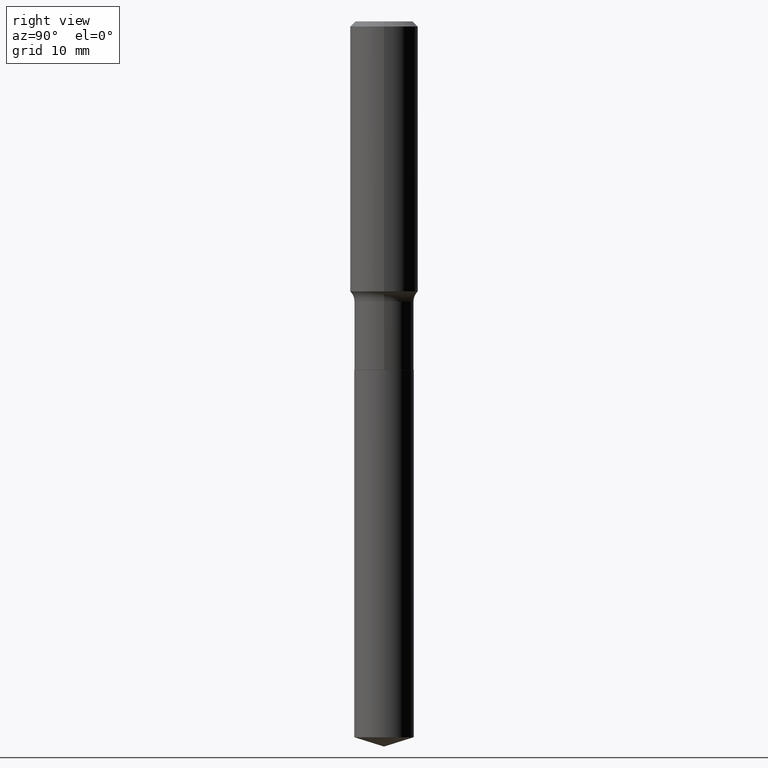
[diagram: clean part render]
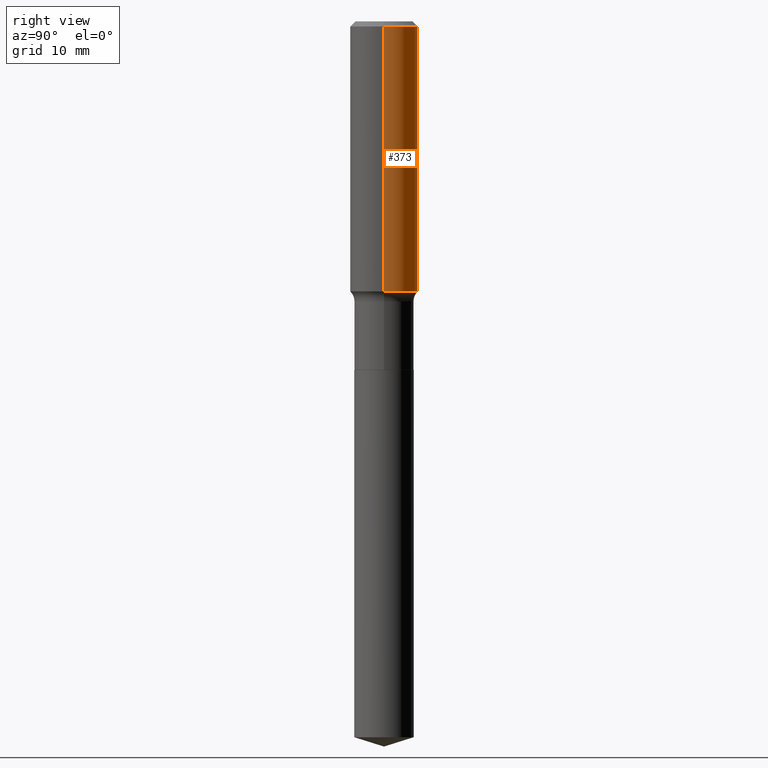
[diagram: same view with one face highlighted and labeled with its STEP entity id]
A machine part, right view. The second image highlights one B-rep face of the part: STEP entity #373.
In plain terms, the highlighted cylindrical surface (edge-blend (fillet) strip) has radius 4.7625 mm, axis along (-0, 0, 1).
Its self-contained STEP definition (entity closure, byte-faithful):
#4 = CARTESIAN_POINT ( 'NONE',  ( 0.1875000000000001943, -6.507590134814400434E-15, -1.488847892416519159 ) ) ;
#6 = CARTESIAN_POINT ( 'NONE',  ( 0.1875000000000001110, -1.309305502066175797E-15, 9.142831454617385217E-30 ) ) ;
#14 = AXIS2_PLACEMENT_3D ( 'NONE', #482, #147, #300 ) ;
#48 = DIRECTION ( 'NONE',  ( -2.445468806185136877E-29, 3.491481338843145188E-15, 1.000000000000000000 ) ) ;
#57 = ORIENTED_EDGE ( 'NONE', *, *, #271, .T. ) ;
#63 = VECTOR ( 'NONE', #344, 39.37007874015748143 ) ;
#66 = VERTEX_POINT ( 'NONE', #340 ) ;
#86 = CARTESIAN_POINT ( 'NONE',  ( -0.1875000000000001110, 1.332267629550188637E-15, -9.223003294227953596E-30 ) ) ;
#94 = AXIS2_PLACEMENT_3D ( 'NONE', #178, #319, #283 ) ;
#103 = ORIENTED_EDGE ( 'NONE', *, *, #299, .F. ) ;
#107 = EDGE_CURVE ( 'NONE', #282, #320, #201, .T. ) ;
#122 = CARTESIAN_POINT ( 'NONE',  ( 0.1875000000000000278, -1.407503414721139120E-15, -0.02812500000000018804 ) ) ;
#129 = FACE_OUTER_BOUND ( 'NONE', #248, .T. ) ;
#130 = ORIENTED_EDGE ( 'NONE', *, *, #229, .F. ) ;
#135 = CIRCLE ( 'NONE', #228, 0.1875000000000000278 ) ;
#147 = DIRECTION ( 'NONE',  ( -2.445468806185136597E-29, 3.491481338843145583E-15, 1.000000000000000000 ) ) ;
#167 = DIRECTION ( 'NONE',  ( -2.445468806185136597E-29, 3.491481338843145583E-15, 1.000000000000000000 ) ) ;
#178 = CARTESIAN_POINT ( 'NONE',  ( 0.000000000000000000, 0.000000000000000000, 0.000000000000000000 ) ) ;
#194 = VECTOR ( 'NONE', #48, 39.37007874015748143 ) ;
#201 = CIRCLE ( 'NONE', #14, 0.1875000000000001943 ) ;
#203 = LINE ( 'NONE', #6, #194 ) ;
#211 = VERTEX_POINT ( 'NONE', #122 ) ;
#228 = AXIS2_PLACEMENT_3D ( 'NONE', #346, #167, #310 ) ;
#229 = EDGE_CURVE ( 'NONE', #211, #66, #135, .T. ) ;
#230 = ORIENTED_EDGE ( 'NONE', *, *, #107, .T. ) ;
#238 = CARTESIAN_POINT ( 'NONE',  ( -0.1875000000000001943, -3.866017003198034421E-15, -1.488847892416519159 ) ) ;
#248 = EDGE_LOOP ( 'NONE', ( #230, #57, #130, #103 ) ) ;
#271 = EDGE_CURVE ( 'NONE', #320, #66, #275, .T. ) ;
#275 = LINE ( 'NONE', #86, #63 ) ;
#282 = VERTEX_POINT ( 'NONE', #4 ) ;
#283 = DIRECTION ( 'NONE',  ( 1.000000000000000000, -6.982962677686266711E-15, 4.876176775795935793E-29 ) ) ;
#284 = CYLINDRICAL_SURFACE ( 'NONE', #94, 0.1875000000000001110 ) ;
#299 = EDGE_CURVE ( 'NONE', #282, #211, #203, .T. ) ;
#300 = DIRECTION ( 'NONE',  ( 1.000000000000000000, -6.982962677686265922E-15, 0.000000000000000000 ) ) ;
#310 = DIRECTION ( 'NONE',  ( 1.000000000000000000, -6.982962677686264344E-15, 0.000000000000000000 ) ) ;
#319 = DIRECTION ( 'NONE',  ( -2.445468806185136597E-29, 3.491481338843145583E-15, 1.000000000000000000 ) ) ;
#320 = VERTEX_POINT ( 'NONE', #238 ) ;
#340 = CARTESIAN_POINT ( 'NONE',  ( -0.1875000000000000278, -1.315973643151404751E-15, -0.02812500000000018804 ) ) ;
#344 = DIRECTION ( 'NONE',  ( -2.445468806185136877E-29, 3.491481338843145188E-15, 1.000000000000000000 ) ) ;
#346 = CARTESIAN_POINT ( 'NONE',  ( 6.877881017395742746E-31, -9.819791265496411169E-17, -0.02812500000000018804 ) ) ;
#373 = ADVANCED_FACE ( 'NONE', ( #129 ), #284, .T. ) ;
#482 = CARTESIAN_POINT ( 'NONE',  ( 3.640931078059081513E-29, -5.198284632748223059E-15, -1.488847892416519159 ) ) ;